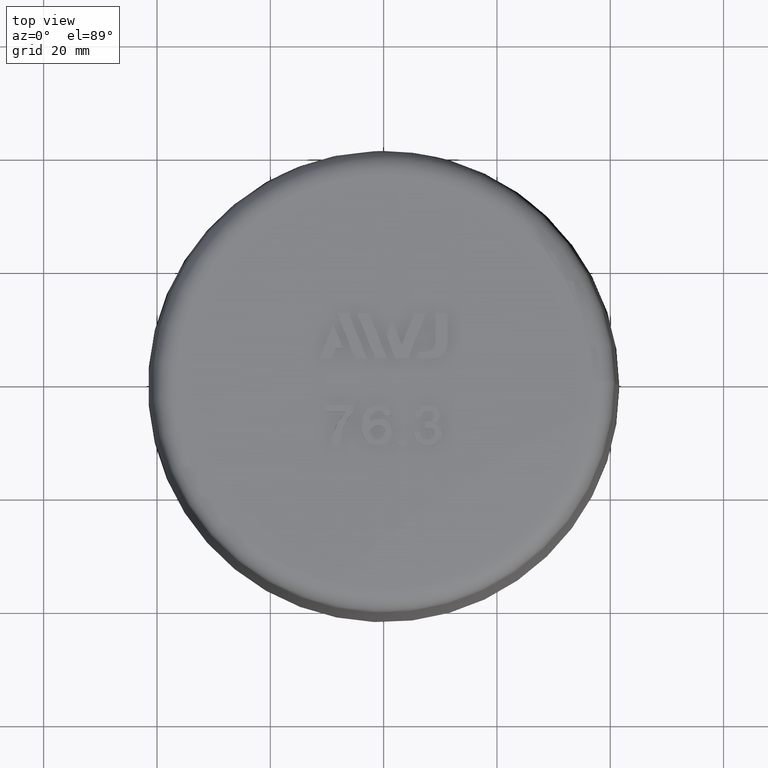
[diagram: clean part render]
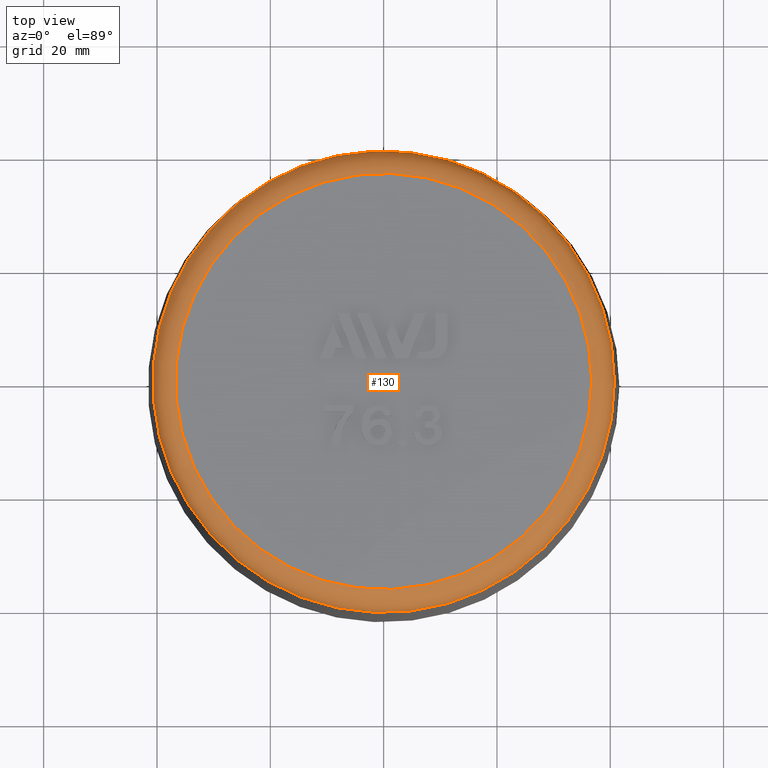
[diagram: same view with one face highlighted and labeled with its STEP entity id]
A machine part, top view. The second image highlights one B-rep face of the part: STEP entity #130.
In plain terms, the highlighted toroidal blend (fillet) surface has major radius 36.7309 mm and minor (blend) radius 4 mm.
Its self-contained STEP definition (entity closure, byte-faithful):
#130 = ADVANCED_FACE( '', ( #267, #268 ), #269, .T. );
#267 = FACE_OUTER_BOUND( '', #425, .T. );
#268 = FACE_OUTER_BOUND( '', #426, .T. );
#269 = TOROIDAL_SURFACE( '', #427, 36.7309261136789, 4.00000000000000 );
#425 = EDGE_LOOP( '', ( #953 ) );
#426 = EDGE_LOOP( '', ( #954 ) );
#427 = AXIS2_PLACEMENT_3D( '', #955, #956, #957 );
#953 = ORIENTED_EDGE( '', *, *, #1090, .F. );
#954 = ORIENTED_EDGE( '', *, *, #1207, .T. );
#955 = CARTESIAN_POINT( '', ( -3.00028556686483E-015, 0.000000000000000, 49.0000000000000 ) );
#956 = DIRECTION( '', ( -6.12303176911189E-017, 0.000000000000000, 1.00000000000000 ) );
#957 = DIRECTION( '', ( 1.00000000000000, 0.000000000000000, 6.12303176911189E-017 ) );
#1090 = EDGE_CURVE( '', #1275, #1275, #1276, .T. );
#1207 = EDGE_CURVE( '', #1467, #1467, #1468, .T. );
#1275 = VERTEX_POINT( '', #1645 );
#1276 = CIRCLE( '', #1646, 36.7309261136789 );
#1467 = VERTEX_POINT( '', #2098 );
#1468 = CIRCLE( '', #2099, 40.7303168943044 );
#1645 = CARTESIAN_POINT( '', ( 36.7309261136789, 0.000000000000000, 53.0000000000000 ) );
#1646 = AXIS2_PLACEMENT_3D( '', #2135, #2136, #2137 );
#2098 = CARTESIAN_POINT( '', ( 40.7303168943044, 0.000000000000000, 49.0698096257491 ) );
#2099 = AXIS2_PLACEMENT_3D( '', #2235, #2236, #2237 );
#2135 = CARTESIAN_POINT( '', ( -3.24520683762930E-015, 0.000000000000000, 53.0000000000000 ) );
#2136 = DIRECTION( '', ( -6.12303176911189E-017, 0.000000000000000, 1.00000000000000 ) );
#2137 = DIRECTION( '', ( 1.00000000000000, 0.000000000000000, 6.12303176911189E-017 ) );
#2235 = CARTESIAN_POINT( '', ( -3.00456003242734E-015, 0.000000000000000, 49.0698096257491 ) );
#2236 = DIRECTION( '', ( -6.12303176911189E-017, 0.000000000000000, 1.00000000000000 ) );
#2237 = DIRECTION( '', ( 1.00000000000000, 0.000000000000000, 6.12303176911189E-017 ) );